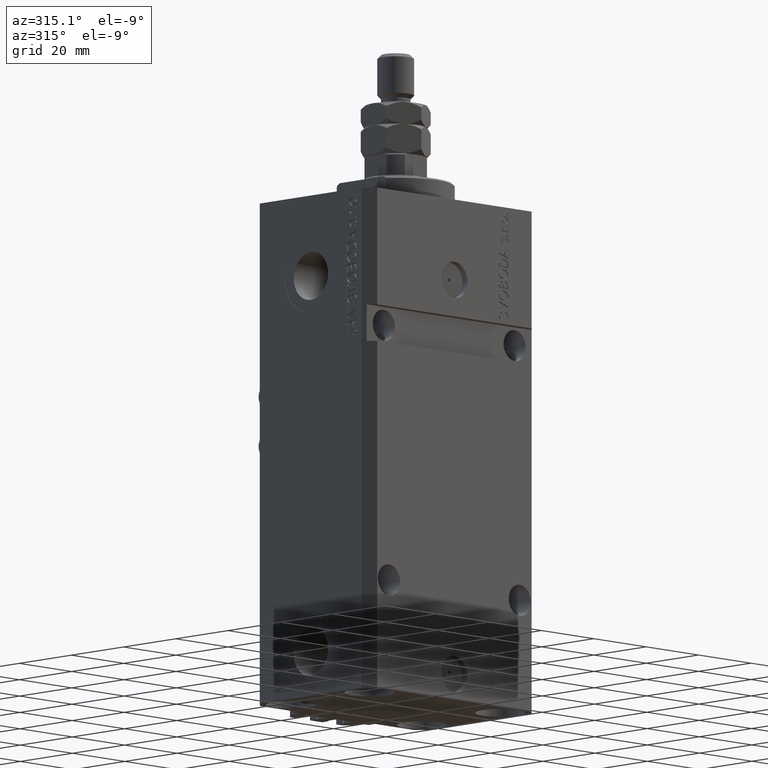
[diagram: clean part render]
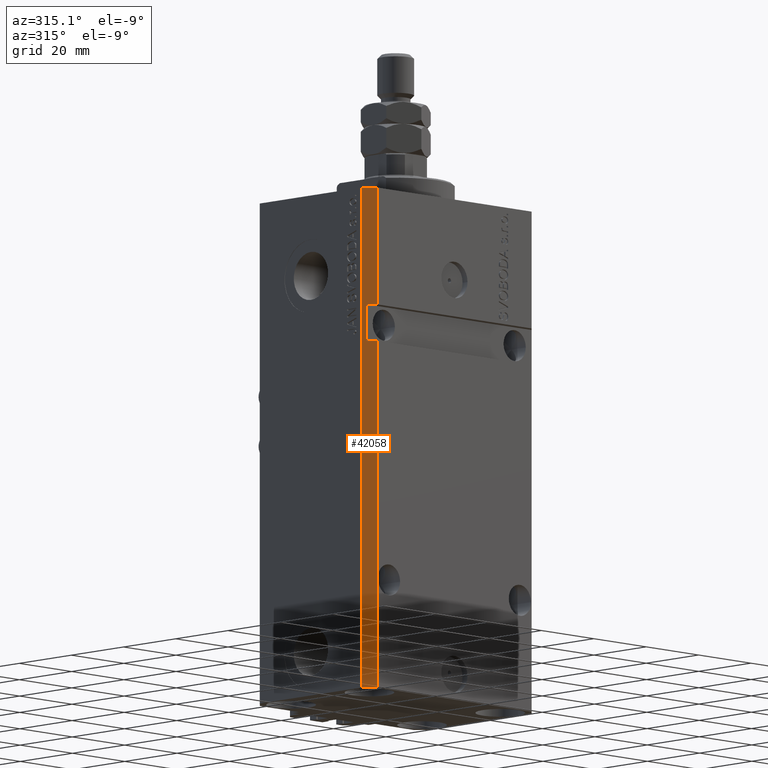
[diagram: same view with one face highlighted and labeled with its STEP entity id]
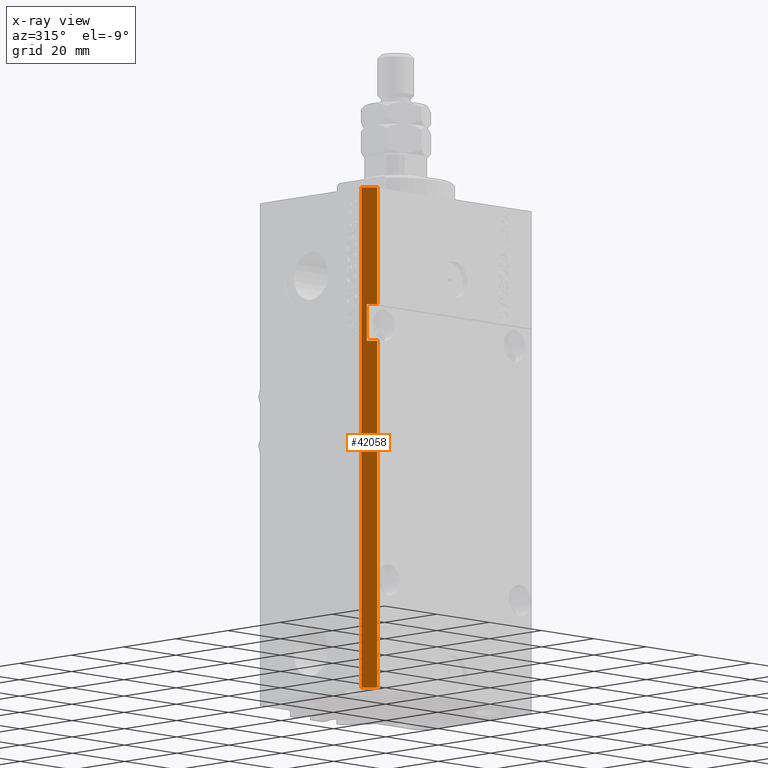
[diagram: x-ray of the same camera — body ghosted, the highlighted face saturated]
A machine part, auxiliary view. The second image highlights one B-rep face of the part: STEP entity #42058.
The next image is the same camera in x-ray: the body ghosted, the highlighted face saturated — about 0% of this face is hidden behind the body in this view.
In plain terms, the highlighted planar face has unit normal (-0.7071, -0.7071, 0).
Its self-contained STEP definition (entity closure, byte-faithful):
#1120 = EDGE_CURVE ( 'NONE', #17359, #12298, #21225, .T. ) ;
#2274 = EDGE_CURVE ( 'NONE', #34959, #41946, #37535, .T. ) ;
#2673 = EDGE_CURVE ( 'NONE', #36241, #17359, #41947, .T. ) ;
#4091 = DIRECTION ( 'NONE',  ( 0.7071067811865474617, -0.7071067811865474617, 0.000000000000000000 ) ) ;
#4159 = ORIENTED_EDGE ( 'NONE', *, *, #2274, .T. ) ;
#4402 = ORIENTED_EDGE ( 'NONE', *, *, #18464, .T. ) ;
#4627 = AXIS2_PLACEMENT_3D ( 'NONE', #7158, #15132, #22333 ) ;
#4828 = DIRECTION ( 'NONE',  ( 0.7071067811865474617, -0.7071067811865474617, 0.000000000000000000 ) ) ;
#4950 = ORIENTED_EDGE ( 'NONE', *, *, #1120, .T. ) ;
#6150 = VECTOR ( 'NONE', #30280, 1000.000000000000000 ) ;
#6325 = CARTESIAN_POINT ( 'NONE',  ( -31.49999999999650413, -20.49999999999949907, -41.99999999999999289 ) ) ;
#6430 = LINE ( 'NONE', #22108, #30509 ) ;
#6656 = ORIENTED_EDGE ( 'NONE', *, *, #31972, .F. ) ;
#7158 = CARTESIAN_POINT ( 'NONE',  ( -32.49999999999650413, -19.49999999999949907, -137.0000000000000000 ) ) ;
#8590 = VECTOR ( 'NONE', #4091, 1000.000000000000114 ) ;
#10876 = CARTESIAN_POINT ( 'NONE',  ( -29.49999999999650058, -22.49999999999949907, -32.00000000000000000 ) ) ;
#11119 = VERTEX_POINT ( 'NONE', #47492 ) ;
#11864 = CARTESIAN_POINT ( 'NONE',  ( -29.49999999999650413, -22.49999999999949907, -41.99999999999999289 ) ) ;
#11947 = LINE ( 'NONE', #15192, #42921 ) ;
#12191 = DIRECTION ( 'NONE',  ( 0.000000000000000000, 0.000000000000000000, 1.000000000000000000 ) ) ;
#12298 = VERTEX_POINT ( 'NONE', #11864 ) ;
#12607 = LINE ( 'NONE', #39000, #24268 ) ;
#14902 = DIRECTION ( 'NONE',  ( 0.7071067811865474617, -0.7071067811865474617, 7.548521435980497974E-17 ) ) ;
#15119 = CARTESIAN_POINT ( 'NONE',  ( -29.49999999999650413, -22.49999999999949907, -137.0000000000000000 ) ) ;
#15132 = DIRECTION ( 'NONE',  ( -0.7071067811865475727, -0.7071067811865475727, 0.000000000000000000 ) ) ;
#15192 = CARTESIAN_POINT ( 'NONE',  ( -32.49999999999650413, -19.49999999999949907, -137.0000000000000000 ) ) ;
#17359 = VERTEX_POINT ( 'NONE', #43111 ) ;
#18464 = EDGE_CURVE ( 'NONE', #37026, #11119, #20734, .T. ) ;
#19899 = EDGE_LOOP ( 'NONE', ( #45799, #4402, #6656, #4159, #48925, #22852, #32830, #4950 ) ) ;
#20734 = LINE ( 'NONE', #35696, #47853 ) ;
#21225 = LINE ( 'NONE', #47654, #40205 ) ;
#22108 = CARTESIAN_POINT ( 'NONE',  ( -32.49999999999651124, -19.49999999999949551, -41.99999999999999289 ) ) ;
#22333 = DIRECTION ( 'NONE',  ( 0.7071067811865474617, -0.7071067811865474617, 0.000000000000000000 ) ) ;
#22852 = ORIENTED_EDGE ( 'NONE', *, *, #45645, .F. ) ;
#23251 = CARTESIAN_POINT ( 'NONE',  ( -32.49999999999650413, -19.49999999999949907, -137.0000000000000000 ) ) ;
#23346 = EDGE_CURVE ( 'NONE', #37026, #12298, #6430, .T. ) ;
#23739 = LINE ( 'NONE', #38948, #29330 ) ;
#24268 = VECTOR ( 'NONE', #38751, 1000.000000000000114 ) ;
#29330 = VECTOR ( 'NONE', #4828, 1000.000000000000114 ) ;
#29507 = CARTESIAN_POINT ( 'NONE',  ( -32.49999999999650413, -19.49999999999949907, -137.0000000000000000 ) ) ;
#30280 = DIRECTION ( 'NONE',  ( 0.000000000000000000, 0.000000000000000000, 1.000000000000000000 ) ) ;
#30509 = VECTOR ( 'NONE', #14902, 1000.000000000000114 ) ;
#31972 = EDGE_CURVE ( 'NONE', #34959, #11119, #12607, .T. ) ;
#32830 = ORIENTED_EDGE ( 'NONE', *, *, #2673, .T. ) ;
#33031 = VERTEX_POINT ( 'NONE', #35732 ) ;
#34959 = VERTEX_POINT ( 'NONE', #10876 ) ;
#35696 = CARTESIAN_POINT ( 'NONE',  ( -31.49999999999650413, -20.49999999999950262, -137.0000000000000000 ) ) ;
#35732 = CARTESIAN_POINT ( 'NONE',  ( -32.49999999999650413, -19.49999999999949907, 0.000000000000000000 ) ) ;
#36241 = VERTEX_POINT ( 'NONE', #29507 ) ;
#37026 = VERTEX_POINT ( 'NONE', #6325 ) ;
#37535 = LINE ( 'NONE', #15119, #6150 ) ;
#38751 = DIRECTION ( 'NONE',  ( -0.7071067811865474617, 0.7071067811865474617, 7.548521435980497974E-17 ) ) ;
#38948 = CARTESIAN_POINT ( 'NONE',  ( -32.49999999999650413, -19.49999999999949907, 0.000000000000000000 ) ) ;
#39000 = CARTESIAN_POINT ( 'NONE',  ( -32.49999999999649702, -19.49999999999950617, -32.00000000000000000 ) ) ;
#39440 = DIRECTION ( 'NONE',  ( 0.000000000000000000, 0.000000000000000000, 1.000000000000000000 ) ) ;
#39559 = CARTESIAN_POINT ( 'NONE',  ( -29.49999999999650413, -22.49999999999949907, 0.000000000000000000 ) ) ;
#40175 = DIRECTION ( 'NONE',  ( 0.000000000000000000, 0.000000000000000000, 1.000000000000000000 ) ) ;
#40205 = VECTOR ( 'NONE', #40175, 1000.000000000000000 ) ;
#41281 = PLANE ( 'NONE',  #4627 ) ;
#41946 = VERTEX_POINT ( 'NONE', #39559 ) ;
#41947 = LINE ( 'NONE', #23251, #8590 ) ;
#42058 = ADVANCED_FACE ( 'NONE', ( #44771 ), #41281, .T. ) ;
#42921 = VECTOR ( 'NONE', #12191, 1000.000000000000000 ) ;
#43111 = CARTESIAN_POINT ( 'NONE',  ( -29.49999999999650413, -22.49999999999949907, -137.0000000000000000 ) ) ;
#44241 = EDGE_CURVE ( 'NONE', #33031, #41946, #23739, .T. ) ;
#44771 = FACE_OUTER_BOUND ( 'NONE', #19899, .T. ) ;
#45645 = EDGE_CURVE ( 'NONE', #36241, #33031, #11947, .T. ) ;
#45799 = ORIENTED_EDGE ( 'NONE', *, *, #23346, .F. ) ;
#47492 = CARTESIAN_POINT ( 'NONE',  ( -31.49999999999650413, -20.49999999999950262, -32.00000000000000000 ) ) ;
#47654 = CARTESIAN_POINT ( 'NONE',  ( -29.49999999999650413, -22.49999999999949907, -137.0000000000000000 ) ) ;
#47853 = VECTOR ( 'NONE', #39440, 1000.000000000000000 ) ;
#48925 = ORIENTED_EDGE ( 'NONE', *, *, #44241, .F. ) ;